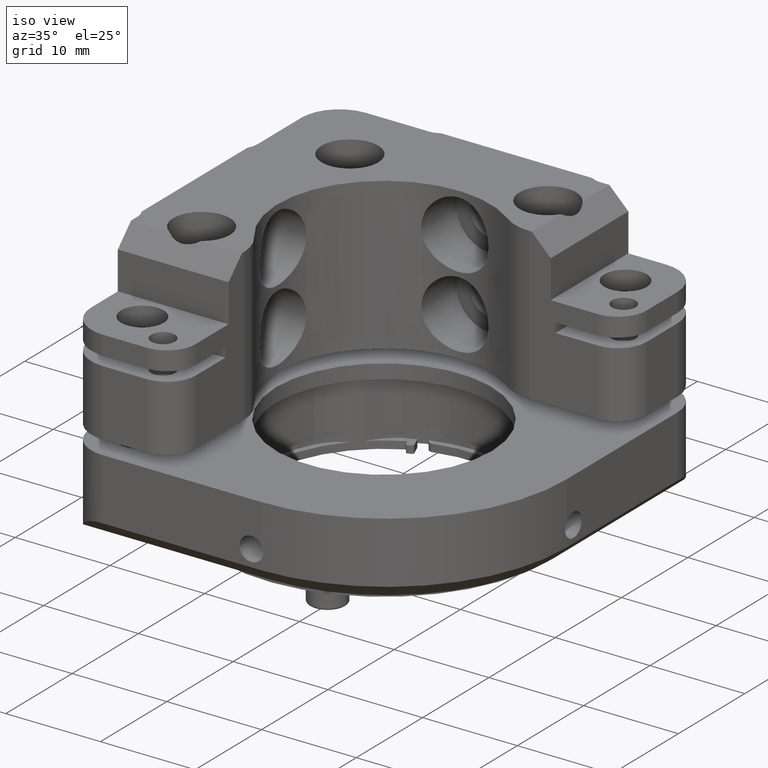
[diagram: clean part render]
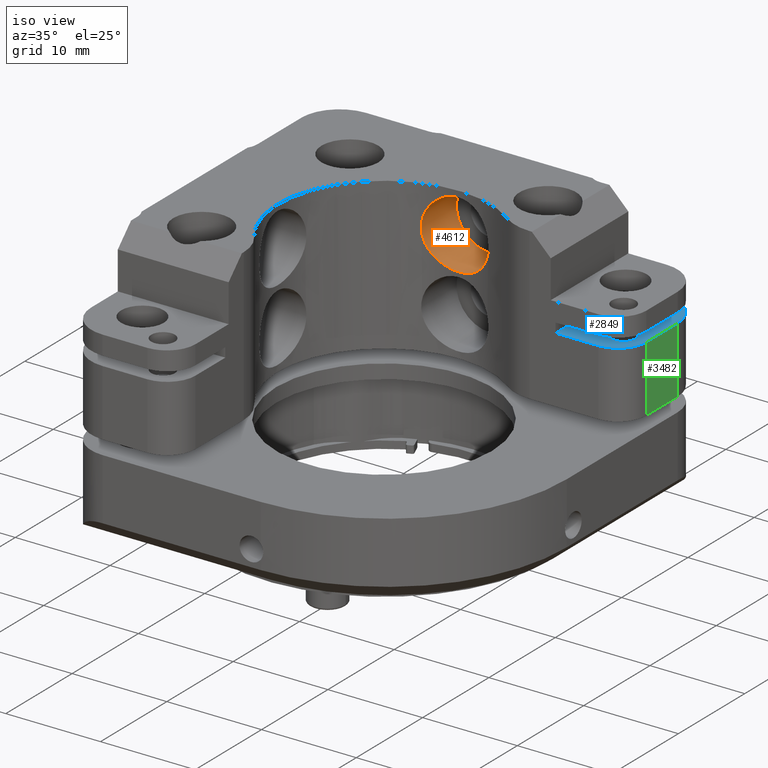
[diagram: same view with three faces highlighted in distinct colors, each labeled with its STEP entity id]
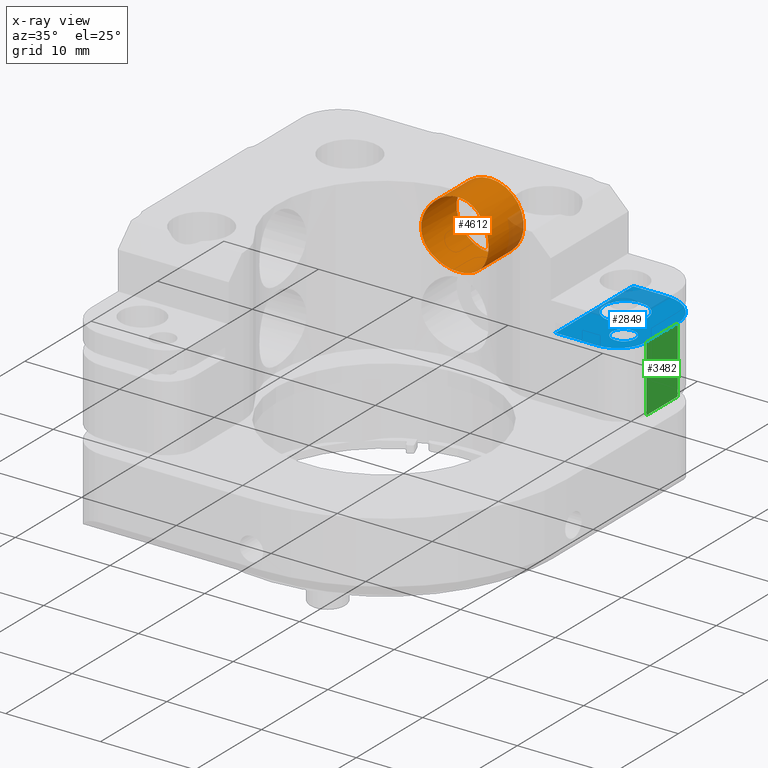
[diagram: x-ray of the same camera — body ghosted, the three highlighted faces saturated]
A machine part, iso view with three faces highlighted in distinct colors.
The next image is the same camera in x-ray (body ghosted, the three faces saturated) — at least one of them is partly hidden behind the body in this view.
Their STEP definitions:

[orange] entity #4612 — the highlighted cylindrical surface (bore or boss wall) has radius 3.55 mm, axis along (0, 1, 0).
#161 = CARTESIAN_POINT ( 'NONE',  ( -1.530369033329904038, 8.586266490541754948, 51.62848633835312029 ) ) ;
#245 = CARTESIAN_POINT ( 'NONE',  ( -5.987755658656773505, 8.405547851881792099, 50.89644701238560032 ) ) ;
#321 = CARTESIAN_POINT ( 'NONE',  ( -4.893751913291115585, 8.617387937773468565, 45.36250325345411483 ) ) ;
#367 = CARTESIAN_POINT ( 'NONE',  ( -5.989346801238241369, 8.405152538514020222, 46.20552914934300759 ) ) ;
#401 = CARTESIAN_POINT ( 'NONE',  ( -3.546445800775468005, 8.726836882760416358, 45.00003243101766515 ) ) ;
#705 = CARTESIAN_POINT ( 'NONE',  ( -0.1252134088632065878, 8.265728095126508634, 50.12805316787222409 ) ) ;
#719 = EDGE_CURVE ( 'NONE', #5009, #5009, #6345, .T. ) ;
#781 = CARTESIAN_POINT ( 'NONE',  ( 0.2132244045658422960, 8.159533871875730426, 49.01654055617019878 ) ) ;
#900 = CARTESIAN_POINT ( 'NONE',  ( -1.145475676170410129, 8.517576095495648758, 45.72945833709520969 ) ) ;
#941 = CARTESIAN_POINT ( 'NONE',  ( 0.1214089604871732425, 8.189424685421013095, 47.62450006543650716 ) ) ;
#948 = EDGE_LOOP ( 'NONE', ( #4308 ) ) ;
#954 = DIRECTION ( 'NONE',  ( -0.000000000000000000, -1.000000000000000000, -0.000000000000000000 ) ) ;
#1025 = CARTESIAN_POINT ( 'NONE',  ( -0.6422884623291388317, 8.406186816211155488, 46.20079897486505160 ) ) ;
#1059 = CARTESIAN_POINT ( 'NONE',  ( -4.461997229194839321, 8.670155739381204540, 45.18278913406242481 ) ) ;
#1299 = CARTESIAN_POINT ( 'NONE',  ( 0.2363215164391065937, 8.151769701380514377, 48.54820530439382509 ) ) ;
#1508 = CARTESIAN_POINT ( 'NONE',  ( 0.2363215169500273438, 8.151769701748911245, 48.54820530452334992 ) ) ;
#1554 = CARTESIAN_POINT ( 'NONE',  ( -2.846991596595978002, 8.719482409169849291, 52.07699876430663721 ) ) ;
#1593 = CARTESIAN_POINT ( 'NONE',  ( -3.783357612573775786, 8.719341818254731535, 45.02357736213344452 ) ) ;
#1635 = CARTESIAN_POINT ( 'NONE',  ( -3.546426494587659128, 8.726852179569906554, 52.10014409357718534 ) ) ;
#1646 = AXIS2_PLACEMENT_3D ( 'NONE', #3276, #5060, #7665 ) ;
#1679 = CARTESIAN_POINT ( 'NONE',  ( -6.391873348702816315, 8.298136407065943132, 46.76668020533094960 ) ) ;
#2116 = CARTESIAN_POINT ( 'NONE',  ( -0.9676576224955441008, 8.480650949830732088, 45.87582455977587159 ) ) ;
#2197 = CARTESIAN_POINT ( 'NONE',  ( -3.079947191275853147, 8.726816905514855449, 45.00009570405405412 ) ) ;
#2236 = CARTESIAN_POINT ( 'NONE',  ( -5.662346490322087256, 8.480098723900463042, 45.87802292585680419 ) ) ;
#2281 = CARTESIAN_POINT ( 'NONE',  ( -6.680442926197303954, 8.211398892409077277, 49.69946308467318374 ) ) ;
#2535 = CARTESIAN_POINT ( 'NONE',  ( 0.2363215169500273438, 8.151769701748911245, 48.54820530452334992 ) ) ;
#2556 = FACE_OUTER_BOUND ( 'NONE', #948, .T. ) ;
#2648 = CARTESIAN_POINT ( 'NONE',  ( -1.734984760622216626, 8.617543287776893379, 51.73814684444178624 ) ) ;
#2729 = CARTESIAN_POINT ( 'NONE',  ( -2.164116382807927952, 8.669979092779261265, 45.18340385829866790 ) ) ;
#2811 = CARTESIAN_POINT ( 'NONE',  ( 0.2127474845624594268, 8.159692036471966503, 48.08015511804587305 ) ) ;
#2848 = CARTESIAN_POINT ( 'NONE',  ( -6.133777362313810322, 8.368282313894892965, 50.71867025855012656 ) ) ;
#2884 = CARTESIAN_POINT ( 'NONE',  ( -6.135110307681167718, 8.367934528686570061, 46.38320819674297724 ) ) ;
#3185 = CARTESIAN_POINT ( 'NONE',  ( -0.2340937240304970524, 8.297742666492791130, 50.33110633409995671 ) ) ;
#3235 = EDGE_CURVE ( 'NONE', #7592, #7592, #4518, .T. ) ;
#3263 = CARTESIAN_POINT ( 'NONE',  ( -0.6399691800440767686, 8.405619068986592168, 50.89670608751026037 ) ) ;
#3276 = CARTESIAN_POINT ( 'NONE',  ( -3.313677996447326635, -2.518304613739596132, 48.55006403488195588 ) ) ;
#3470 = CARTESIAN_POINT ( 'NONE',  ( -5.660020284225955045, 8.480600871087755621, 51.22417739994862274 ) ) ;
#3508 = CARTESIAN_POINT ( 'NONE',  ( -6.863700753026828139, 8.151762007790090081, 48.31776410162696322 ) ) ;
#3543 = CARTESIAN_POINT ( 'NONE',  ( -4.892652665842375015, 8.617549766822257595, 51.73819053998428075 ) ) ;
#3842 = CARTESIAN_POINT ( 'NONE',  ( 0.1221624845443527868, 8.189182274931617656, 49.47290805223508414 ) ) ;
#4002 = CARTESIAN_POINT ( 'NONE',  ( -3.782833663569133087, 8.719352549976479239, 52.07658276709626222 ) ) ;
#4039 = CARTESIAN_POINT ( 'NONE',  ( -5.097218840745913582, 8.586185984047057573, 51.62812472142667275 ) ) ;
#4077 = CARTESIAN_POINT ( 'NONE',  ( -0.1265502701843156663, 8.266125847945877680, 46.96932955230251849 ) ) ;
#4120 = CARTESIAN_POINT ( 'NONE',  ( -4.239917897994151197, 8.690949419017627520, 45.11512781427170893 ) ) ;
#4163 = CARTESIAN_POINT ( 'NONE',  ( -6.502404899382900005, 8.265649398568497119, 50.12748122965015085 ) ) ;
#4213 = DIRECTION ( 'NONE',  ( 0.000000000000000000, 0.000000000000000000, 1.000000000000000000 ) ) ;
#4308 = ORIENTED_EDGE ( 'NONE', *, *, #3235, .F. ) ;
#4518 = CIRCLE ( 'NONE', #6720, 3.549999999999997602 ) ;
#4612 = ADVANCED_FACE ( 'NONE', ( #2556, #5173 ), #6392, .F. ) ;
#4616 = CARTESIAN_POINT ( 'NONE',  ( -0.2357511986268418791, 8.298218711627310284, 46.76612497313428207 ) ) ;
#4701 = CARTESIAN_POINT ( 'NONE',  ( -2.388869613929451408, 8.691083539488793974, 51.98543799371858398 ) ) ;
#4737 = CARTESIAN_POINT ( 'NONE',  ( -5.481788173874002190, 8.517550512664637807, 45.72961817939619777 ) ) ;
#4784 = CARTESIAN_POINT ( 'NONE',  ( -6.840486659330494490, 8.159566873264370912, 48.08223479429365455 ) ) ;
#5009 = VERTEX_POINT ( 'NONE', #1299 ) ;
#5060 = DIRECTION ( 'NONE',  ( 0.000000000000000000, 1.000000000000000000, 0.000000000000000000 ) ) ;
#5154 = CARTESIAN_POINT ( 'NONE',  ( -2.162604241318661469, 8.669832410768812281, 51.91624488915952895 ) ) ;
#5173 = FACE_OUTER_BOUND ( 'NONE', #5739, .T. ) ;
#5229 = CARTESIAN_POINT ( 'NONE',  ( -1.533219182167269823, 8.586727164083134411, 45.46998542960358947 ) ) ;
#5349 = CARTESIAN_POINT ( 'NONE',  ( -2.848556576431994891, 8.719556694874015079, 45.02289242967203364 ) ) ;
#5731 = CARTESIAN_POINT ( 'NONE',  ( -0.4911081750577904192, 8.367641265824399710, 50.71548560259152083 ) ) ;
#5739 = EDGE_LOOP ( 'NONE', ( #6658 ) ) ;
#5766 = CARTESIAN_POINT ( 'NONE',  ( -0.9652780690512744455, 8.480142789428978034, 51.22222898845091521 ) ) ;
#5883 = CARTESIAN_POINT ( 'NONE',  ( -6.863655205850921703, 8.151777161618262824, 48.78305897889934073 ) ) ;
#5965 = CARTESIAN_POINT ( 'NONE',  ( -6.390927630420567773, 8.298407922276417992, 50.33509850987236689 ) ) ;
#5999 = CARTESIAN_POINT ( 'NONE',  ( -6.748435234861091203, 8.189532694938753465, 49.47750321235486837 ) ) ;
#6297 = CARTESIAN_POINT ( 'NONE',  ( 0.05308456614546614577, 8.211400774494157062, 49.69952737802825027 ) ) ;
#6345 = B_SPLINE_CURVE_WITH_KNOTS ( 'NONE', 3,
 ( #2535, #6956, #781, #3842, #6297, #705, #3185, #5731, #3263, #5766, #7067, #161, #2648, #5154, #4701, #1554, #7723, #1635, #4002, #7804, #7153, #3543, #4039, #7274, #3470, #245, #2848, #5965, #4163, #2281, #5999, #7878, #5883, #3508, #4784, #6499, #6657, #7231, #1679, #2884, #367, #2236, #4737, #7841, #321, #1059, #4120, #1593, #401, #2197, #5349, #6576, #2729, #6621, #5229, #900, #2116, #1025, #7191, #4616, #4077, #6537, #941, #2811, #7107, #1508 ),
 .UNSPECIFIED., .T., .F.,
 ( 4, 2, 2, 2, 2, 2, 2, 2, 2, 2, 2, 2, 2, 2, 2, 2, 2, 2, 2, 2, 2, 2, 2, 2, 2, 2, 2, 2, 2, 2, 2, 2, 4 ),
 ( 0.000000000000000000, 0.0006988796658876454942, 0.001397759331775290988, 0.002096638997662936266, 0.002795518663550581977, 0.003494398329438227688, 0.004193277995325872531, 0.004892157661213519110, 0.005591037327101164821, 0.006289916992988812267, 0.006988796658876457110, 0.007687676324764102821, 0.008386555990651748532, 0.009085435656539393376, 0.009784315322427039954, 0.01048319498831468480, 0.01118207465420232964, 0.01188095432008997622, 0.01257983398597762106, 0.01327871365186526764, 0.01397759331775291249, 0.01467647298364055733, 0.01537535264952820391, 0.01607423231541585049, 0.01677311198130349360, 0.01747199164719114017, 0.01817087131307878675, 0.01886975097896642986, 0.01956863064485407644, 0.02026751031074172302, 0.02096638997662936613, 0.02166526964251701270, 0.02236414930840465581 ),
 .UNSPECIFIED. ) ;
#6392 = CYLINDRICAL_SURFACE ( 'NONE', #1646, 3.549999999999997602 ) ;
#6499 = CARTESIAN_POINT ( 'NONE',  ( -6.748578568805196021, 8.189485862579459763, 47.62340249960989524 ) ) ;
#6537 = CARTESIAN_POINT ( 'NONE',  ( 0.05232314917007318406, 8.211642254398915597, 47.39830844638566987 ) ) ;
#6576 = CARTESIAN_POINT ( 'NONE',  ( -2.389513530173256406, 8.691146073613193579, 45.11448584377167492 ) ) ;
#6621 = CARTESIAN_POINT ( 'NONE',  ( -1.737394979588912092, 8.617875880559397572, 45.36082831156064543 ) ) ;
#6657 = CARTESIAN_POINT ( 'NONE',  ( -6.680875759623851273, 8.211261131199366403, 47.40199340117803928 ) ) ;
#6658 = ORIENTED_EDGE ( 'NONE', *, *, #719, .T. ) ;
#6720 = AXIS2_PLACEMENT_3D ( 'NONE', #7329, #954, #4213 ) ;
#6956 = CARTESIAN_POINT ( 'NONE',  ( 0.2364452044605700187, 8.151728550150847852, 48.78443677306677984 ) ) ;
#7067 = CARTESIAN_POINT ( 'NONE',  ( -1.143012761023183055, 8.517088567206261729, 51.36876713598442024 ) ) ;
#7107 = CARTESIAN_POINT ( 'NONE',  ( 0.2361978294394846134, 8.151810853346976415, 48.31197383597992712 ) ) ;
#7153 = CARTESIAN_POINT ( 'NONE',  ( -4.460291095130758166, 8.670336597000256162, 51.91794022338041970 ) ) ;
#7191 = CARTESIAN_POINT ( 'NONE',  ( -0.4934454584545382438, 8.368251254989068855, 46.38157138319565576 ) ) ;
#7231 = CARTESIAN_POINT ( 'NONE',  ( -6.503268821243139541, 8.265391978837792308, 46.97443802383344291 ) ) ;
#7274 = CARTESIAN_POINT ( 'NONE',  ( -5.479748306468382069, 8.517947867819522401, 51.37205179980557546 ) ) ;
#7329 = CARTESIAN_POINT ( 'NONE',  ( -3.313677996447326635, 13.48169538626042119, 48.55006403488195588 ) ) ;
#7592 = VERTEX_POINT ( 'NONE', #7703 ) ;
#7665 = DIRECTION ( 'NONE',  ( 0.000000000000000000, 0.000000000000000000, 1.000000000000000000 ) ) ;
#7703 = CARTESIAN_POINT ( 'NONE',  ( -3.313677996447326635, 13.48169538626042119, 52.10006403488195303 ) ) ;
#7723 = CARTESIAN_POINT ( 'NONE',  ( -3.078493678515993537, 8.726801497408439801, 52.09998355835444528 ) ) ;
#7804 = CARTESIAN_POINT ( 'NONE',  ( -4.238301339459329853, 8.691071697921202599, 51.98539707291602241 ) ) ;
#7841 = CARTESIAN_POINT ( 'NONE',  ( -5.098912216429648758, 8.585917054038199936, 45.47296225804843317 ) ) ;
#7878 = CARTESIAN_POINT ( 'NONE',  ( -6.840702377601680872, 8.159496477382646162, 49.01675422064771226 ) ) ;

[blue] entity #2849 — the highlighted planar face has unit normal (0, 0, -1).
#76 = ORIENTED_EDGE ( 'NONE', *, *, #5657, .F. ) ;
#192 = CARTESIAN_POINT ( 'NONE',  ( 12.68632194465278573, 17.18169538626142412, 43.75006403882016315 ) ) ;
#467 = AXIS2_PLACEMENT_3D ( 'NONE', #1068, #2934, #4669 ) ;
#735 = DIRECTION ( 'NONE',  ( -0.000000000000000000, -0.000000000000000000, -1.000000000000000000 ) ) ;
#770 = EDGE_CURVE ( 'NONE', #2264, #5099, #7443, .T. ) ;
#805 = CARTESIAN_POINT ( 'NONE',  ( 9.186321944653814242, -2.518304613739596132, 43.75006403882016315 ) ) ;
#821 = LINE ( 'NONE', #3306, #7628 ) ;
#924 = VERTEX_POINT ( 'NONE', #192 ) ;
#958 = VERTEX_POINT ( 'NONE', #3490 ) ;
#1020 = CARTESIAN_POINT ( 'NONE',  ( 11.68632200355251527, 12.48169532736162246, 43.75006403882016315 ) ) ;
#1029 = FACE_BOUND ( 'NONE', #4803, .T. ) ;
#1068 = CARTESIAN_POINT ( 'NONE',  ( 16.68632194465380891, -2.518304613739596132, 43.75006403882016315 ) ) ;
#1169 = CARTESIAN_POINT ( 'NONE',  ( 13.68632194465361529, 5.481695386260712510, 43.75006403882016315 ) ) ;
#1250 = VECTOR ( 'NONE', #6746, 1000.000000000000000 ) ;
#1404 = DIRECTION ( 'NONE',  ( 1.000000000000000000, 0.000000000000000000, 0.000000000000000000 ) ) ;
#1443 = CIRCLE ( 'NONE', #7844, 2.250000000000000444 ) ;
#1631 = DIRECTION ( 'NONE',  ( 0.000000000000000000, 0.000000000000000000, 1.000000000000000000 ) ) ;
#1796 = EDGE_CURVE ( 'NONE', #2630, #2630, #1443, .T. ) ;
#2084 = EDGE_LOOP ( 'NONE', ( #7044, #76, #5320, #4191, #7967, #3533 ) ) ;
#2120 = FACE_BOUND ( 'NONE', #7032, .T. ) ;
#2264 = VERTEX_POINT ( 'NONE', #5584 ) ;
#2365 = CARTESIAN_POINT ( 'NONE',  ( 6.428205645606094087, 5.481695386260712510, 43.75006403882016315 ) ) ;
#2630 = VERTEX_POINT ( 'NONE', #4528 ) ;
#2663 = DIRECTION ( 'NONE',  ( -0.000000000000000000, -0.000000000000000000, -1.000000000000000000 ) ) ;
#2775 = CIRCLE ( 'NONE', #5535, 4.000000000000001776 ) ;
#2849 = ADVANCED_FACE ( 'NONE', ( #2120, #4622, #1029 ), #2855, .F. ) ;
#2855 = PLANE ( 'NONE',  #467 ) ;
#2934 = DIRECTION ( 'NONE',  ( 0.000000000000000000, 0.000000000000000000, -1.000000000000000000 ) ) ;
#3114 = EDGE_CURVE ( 'NONE', #6465, #7243, #6134, .T. ) ;
#3306 = CARTESIAN_POINT ( 'NONE',  ( 12.68632194465291363, 17.18169538626142412, 43.75006403882016315 ) ) ;
#3352 = DIRECTION ( 'NONE',  ( 1.000000000000000000, 6.393052462770349387E-14, -0.000000000000000000 ) ) ;
#3457 = AXIS2_PLACEMENT_3D ( 'NONE', #4734, #1631, #6618 ) ;
#3490 = CARTESIAN_POINT ( 'NONE',  ( 15.53632200355261084, 8.481695327361622461, 43.75006403882016315 ) ) ;
#3533 = ORIENTED_EDGE ( 'NONE', *, *, #5758, .F. ) ;
#3585 = EDGE_CURVE ( 'NONE', #6515, #924, #821, .T. ) ;
#3625 = ORIENTED_EDGE ( 'NONE', *, *, #4178, .F. ) ;
#4178 = EDGE_CURVE ( 'NONE', #958, #958, #6467, .T. ) ;
#4191 = ORIENTED_EDGE ( 'NONE', *, *, #4572, .F. ) ;
#4528 = CARTESIAN_POINT ( 'NONE',  ( 13.93632200355251527, 12.48169532736162246, 43.75006403882016315 ) ) ;
#4572 = EDGE_CURVE ( 'NONE', #5099, #6465, #6472, .T. ) ;
#4622 = FACE_OUTER_BOUND ( 'NONE', #2084, .T. ) ;
#4669 = DIRECTION ( 'NONE',  ( -1.000000000000000000, 0.000000000000000000, -0.000000000000000000 ) ) ;
#4734 = CARTESIAN_POINT ( 'NONE',  ( 14.28632200355261261, 8.481695327361622461, 43.75006403882016315 ) ) ;
#4779 = DIRECTION ( 'NONE',  ( 1.000000000000000000, 0.000000000000000000, 0.000000000000000000 ) ) ;
#4803 = EDGE_LOOP ( 'NONE', ( #5989 ) ) ;
#5053 = AXIS2_PLACEMENT_3D ( 'NONE', #6275, #2663, #1404 ) ;
#5099 = VERTEX_POINT ( 'NONE', #6141 ) ;
#5312 = CARTESIAN_POINT ( 'NONE',  ( 9.186321944653814242, 5.481695386260712510, 43.75006403882016315 ) ) ;
#5320 = ORIENTED_EDGE ( 'NONE', *, *, #3114, .F. ) ;
#5428 = DIRECTION ( 'NONE',  ( -0.000000000000000000, -0.000000000000000000, -1.000000000000000000 ) ) ;
#5535 = AXIS2_PLACEMENT_3D ( 'NONE', #7528, #735, #7638 ) ;
#5584 = CARTESIAN_POINT ( 'NONE',  ( 16.68632194465326180, 13.18169538626142234, 43.75006403882016315 ) ) ;
#5657 = EDGE_CURVE ( 'NONE', #7243, #6515, #7604, .T. ) ;
#5758 = EDGE_CURVE ( 'NONE', #924, #2264, #2775, .T. ) ;
#5989 = ORIENTED_EDGE ( 'NONE', *, *, #1796, .T. ) ;
#6134 = LINE ( 'NONE', #2365, #1250 ) ;
#6141 = CARTESIAN_POINT ( 'NONE',  ( 16.68632194465361707, 8.481695386260721392, 43.75006403882016315 ) ) ;
#6216 = DIRECTION ( 'NONE',  ( -0.000000000000000000, -1.000000000000000000, -0.000000000000000000 ) ) ;
#6275 = CARTESIAN_POINT ( 'NONE',  ( 13.68632194465361529, 8.481695386260721392, 43.75006403882016315 ) ) ;
#6288 = DIRECTION ( 'NONE',  ( 0.000000000000000000, 1.000000000000000000, 0.000000000000000000 ) ) ;
#6303 = CARTESIAN_POINT ( 'NONE',  ( 9.186321944653814242, 17.18169538626124293, 43.75006403882016315 ) ) ;
#6421 = VECTOR ( 'NONE', #6216, 1000.000000000000000 ) ;
#6465 = VERTEX_POINT ( 'NONE', #1169 ) ;
#6467 = CIRCLE ( 'NONE', #3457, 1.249999999999999334 ) ;
#6472 = CIRCLE ( 'NONE', #5053, 3.000000000000000888 ) ;
#6515 = VERTEX_POINT ( 'NONE', #6303 ) ;
#6618 = DIRECTION ( 'NONE',  ( 1.000000000000000000, 0.000000000000000000, 0.000000000000000000 ) ) ;
#6746 = DIRECTION ( 'NONE',  ( -1.000000000000000000, -0.000000000000000000, -0.000000000000000000 ) ) ;
#7032 = EDGE_LOOP ( 'NONE', ( #3625 ) ) ;
#7044 = ORIENTED_EDGE ( 'NONE', *, *, #3585, .F. ) ;
#7243 = VERTEX_POINT ( 'NONE', #5312 ) ;
#7443 = LINE ( 'NONE', #7969, #6421 ) ;
#7528 = CARTESIAN_POINT ( 'NONE',  ( 12.68632194465291363, 13.18169538626142234, 43.75006403882016315 ) ) ;
#7604 = LINE ( 'NONE', #805, #7742 ) ;
#7628 = VECTOR ( 'NONE', #3352, 1000.000000000000000 ) ;
#7638 = DIRECTION ( 'NONE',  ( 1.000000000000000000, 8.673617379884031528E-16, 0.000000000000000000 ) ) ;
#7742 = VECTOR ( 'NONE', #6288, 1000.000000000000000 ) ;
#7844 = AXIS2_PLACEMENT_3D ( 'NONE', #1020, #5428, #4779 ) ;
#7967 = ORIENTED_EDGE ( 'NONE', *, *, #770, .F. ) ;
#7969 = CARTESIAN_POINT ( 'NONE',  ( 16.68632194465361707, 8.481695386260721392, 43.75006403882016315 ) ) ;

[green] entity #3482 — the highlighted planar face has unit normal (1, 0, -0).
#44 = LINE ( 'NONE', #499, #5400 ) ;
#499 = CARTESIAN_POINT ( 'NONE',  ( 16.68632194465291718, 13.18169538626142234, 36.75006403882015604 ) ) ;
#523 = EDGE_CURVE ( 'NONE', #2264, #7497, #44, .T. ) ;
#749 = PLANE ( 'NONE',  #7228 ) ;
#770 = EDGE_CURVE ( 'NONE', #2264, #5099, #7443, .T. ) ;
#1108 = ORIENTED_EDGE ( 'NONE', *, *, #770, .T. ) ;
#1164 = CARTESIAN_POINT ( 'NONE',  ( 16.68632194465361707, 8.481695386260721392, 36.75006403882015604 ) ) ;
#1763 = DIRECTION ( 'NONE',  ( -0.000000000000000000, -0.000000000000000000, -1.000000000000000000 ) ) ;
#1769 = LINE ( 'NONE', #1164, #7766 ) ;
#2264 = VERTEX_POINT ( 'NONE', #5584 ) ;
#2997 = ORIENTED_EDGE ( 'NONE', *, *, #6491, .F. ) ;
#3149 = CARTESIAN_POINT ( 'NONE',  ( 16.68632194465361707, 8.481695386260721392, 36.75006403882015604 ) ) ;
#3409 = EDGE_CURVE ( 'NONE', #5177, #5099, #1769, .T. ) ;
#3426 = ORIENTED_EDGE ( 'NONE', *, *, #523, .F. ) ;
#3448 = VECTOR ( 'NONE', #6189, 1000.000000000000000 ) ;
#3482 = ADVANCED_FACE ( 'NONE', ( #4438 ), #749, .T. ) ;
#3650 = DIRECTION ( 'NONE',  ( 0.000000000000000000, 0.000000000000000000, 1.000000000000000000 ) ) ;
#3695 = CARTESIAN_POINT ( 'NONE',  ( 16.68632194465361707, 8.481695327361622461, 36.75006403882015604 ) ) ;
#3957 = CARTESIAN_POINT ( 'NONE',  ( 16.68632194465361707, 8.481695386260721392, 36.75006403882015604 ) ) ;
#4438 = FACE_OUTER_BOUND ( 'NONE', #6938, .T. ) ;
#4476 = DIRECTION ( 'NONE',  ( -0.000000000000000000, 0.000000000000000000, -1.000000000000000000 ) ) ;
#4861 = CARTESIAN_POINT ( 'NONE',  ( 16.68632194465326180, 13.18169538626142234, 36.75006403882015604 ) ) ;
#5099 = VERTEX_POINT ( 'NONE', #6141 ) ;
#5177 = VERTEX_POINT ( 'NONE', #3149 ) ;
#5400 = VECTOR ( 'NONE', #1763, 1000.000000000000000 ) ;
#5584 = CARTESIAN_POINT ( 'NONE',  ( 16.68632194465326180, 13.18169538626142234, 43.75006403882016315 ) ) ;
#6141 = CARTESIAN_POINT ( 'NONE',  ( 16.68632194465361707, 8.481695386260721392, 43.75006403882016315 ) ) ;
#6189 = DIRECTION ( 'NONE',  ( -0.000000000000000000, -1.000000000000000000, -0.000000000000000000 ) ) ;
#6216 = DIRECTION ( 'NONE',  ( -0.000000000000000000, -1.000000000000000000, -0.000000000000000000 ) ) ;
#6421 = VECTOR ( 'NONE', #6216, 1000.000000000000000 ) ;
#6491 = EDGE_CURVE ( 'NONE', #7497, #5177, #7496, .T. ) ;
#6938 = EDGE_LOOP ( 'NONE', ( #2997, #3426, #1108, #7586 ) ) ;
#7228 = AXIS2_PLACEMENT_3D ( 'NONE', #3957, #7544, #4476 ) ;
#7443 = LINE ( 'NONE', #7969, #6421 ) ;
#7496 = LINE ( 'NONE', #3695, #3448 ) ;
#7497 = VERTEX_POINT ( 'NONE', #4861 ) ;
#7544 = DIRECTION ( 'NONE',  ( 1.000000000000000000, 0.000000000000000000, -0.000000000000000000 ) ) ;
#7586 = ORIENTED_EDGE ( 'NONE', *, *, #3409, .F. ) ;
#7766 = VECTOR ( 'NONE', #3650, 1000.000000000000000 ) ;
#7969 = CARTESIAN_POINT ( 'NONE',  ( 16.68632194465361707, 8.481695386260721392, 43.75006403882016315 ) ) ;